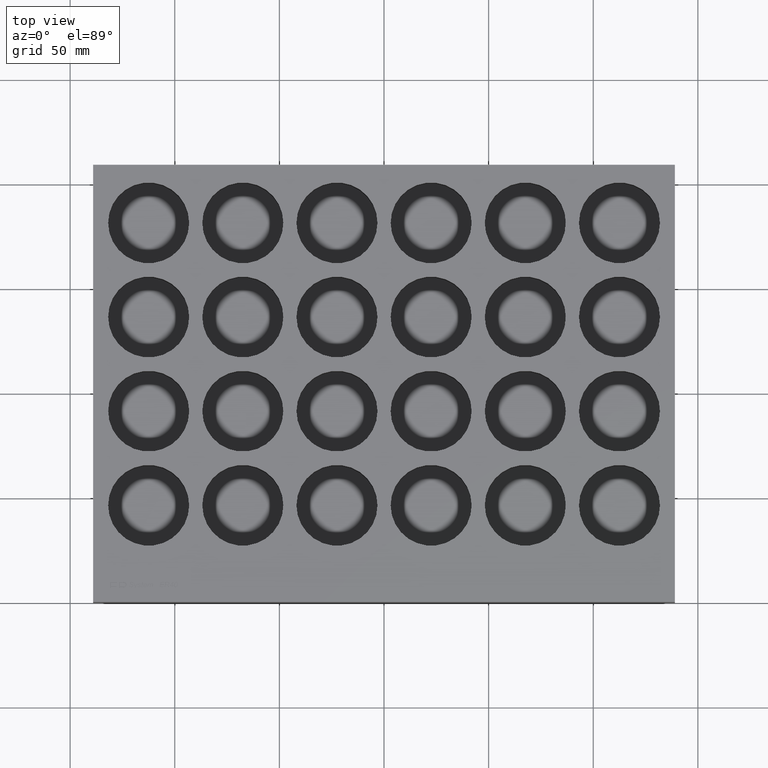
[diagram: clean part render]
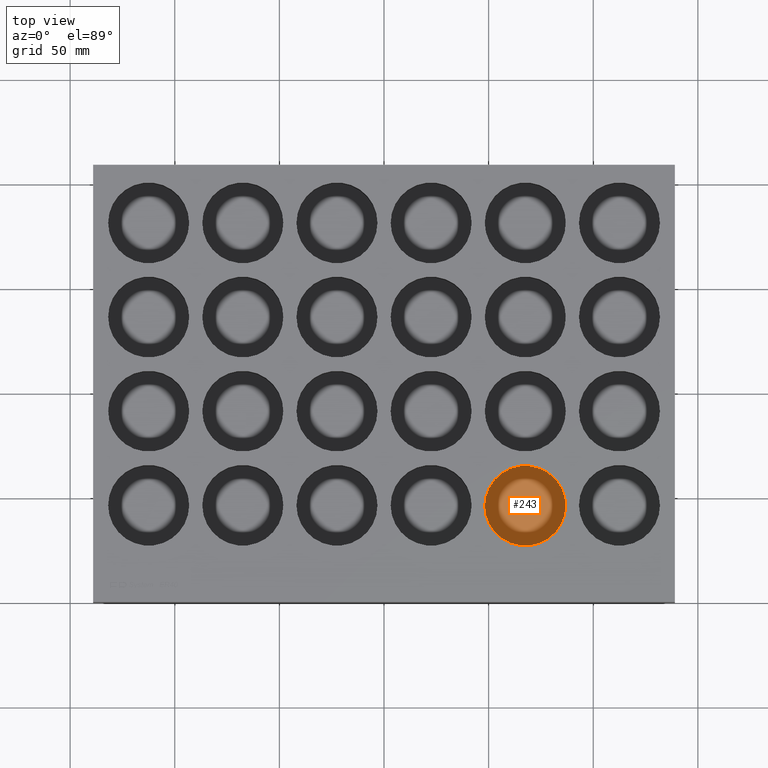
[diagram: same view with one face highlighted and labeled with its STEP entity id]
A machine part, top view. The second image highlights one B-rep face of the part: STEP entity #243.
In plain terms, the highlighted planar face has unit normal (0, 0, -1).
Its self-contained STEP definition (entity closure, byte-faithful):
#243 = ADVANCED_FACE( '', ( #634 ), #635, .F. );
#634 = FACE_OUTER_BOUND( '', #1235, .T. );
#635 = PLANE( '', #1236 );
#1235 = EDGE_LOOP( '', ( #2004 ) );
#1236 = AXIS2_PLACEMENT_3D( '', #2005, #2006, #2007 );
#2004 = ORIENTED_EDGE( '', *, *, #3823, .F. );
#2005 = CARTESIAN_POINT( '', ( 67.5000000000000, 46.2000000000000, -26.0000000000000 ) );
#2006 = DIRECTION( '', ( 0.000000000000000, 0.000000000000000, -1.00000000000000 ) );
#2007 = DIRECTION( '', ( -1.00000000000000, 0.000000000000000, 0.000000000000000 ) );
#3823 = EDGE_CURVE( '', #4440, #4440, #4441, .T. );
#4440 = VERTEX_POINT( '', #5514 );
#4441 = CIRCLE( '', #5515, 19.3500000000000 );
#5514 = CARTESIAN_POINT( '', ( 86.8500000000000, 46.2000000000000, -26.0000000000000 ) );
#5515 = AXIS2_PLACEMENT_3D( '', #7292, #7293, #7294 );
#7292 = CARTESIAN_POINT( '', ( 67.5000000000000, 46.2000000000000, -26.0000000000000 ) );
#7293 = DIRECTION( '', ( 0.000000000000000, 0.000000000000000, -1.00000000000000 ) );
#7294 = DIRECTION( '', ( 1.00000000000000, 0.000000000000000, 0.000000000000000 ) );